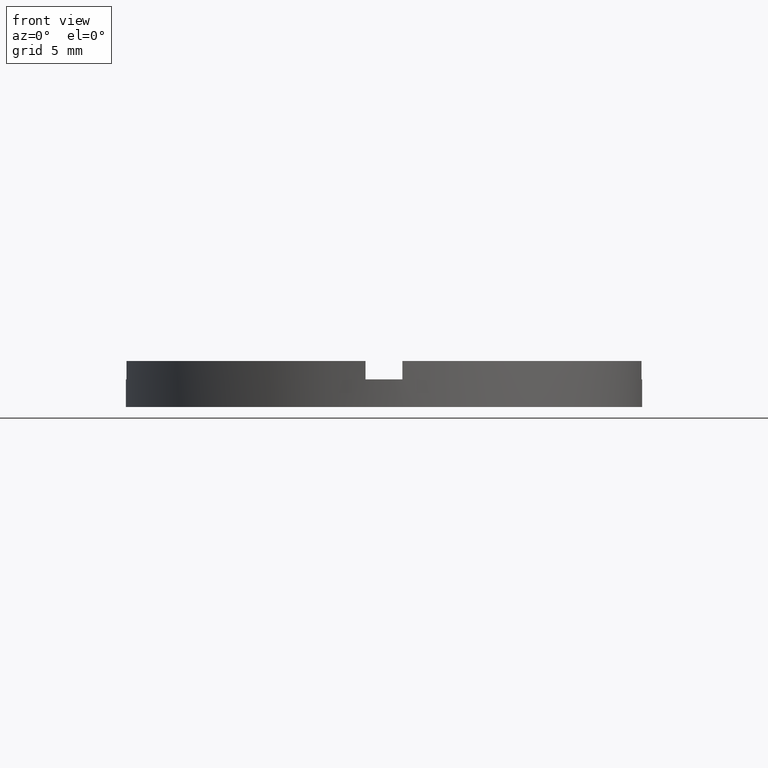
[diagram: clean part render]
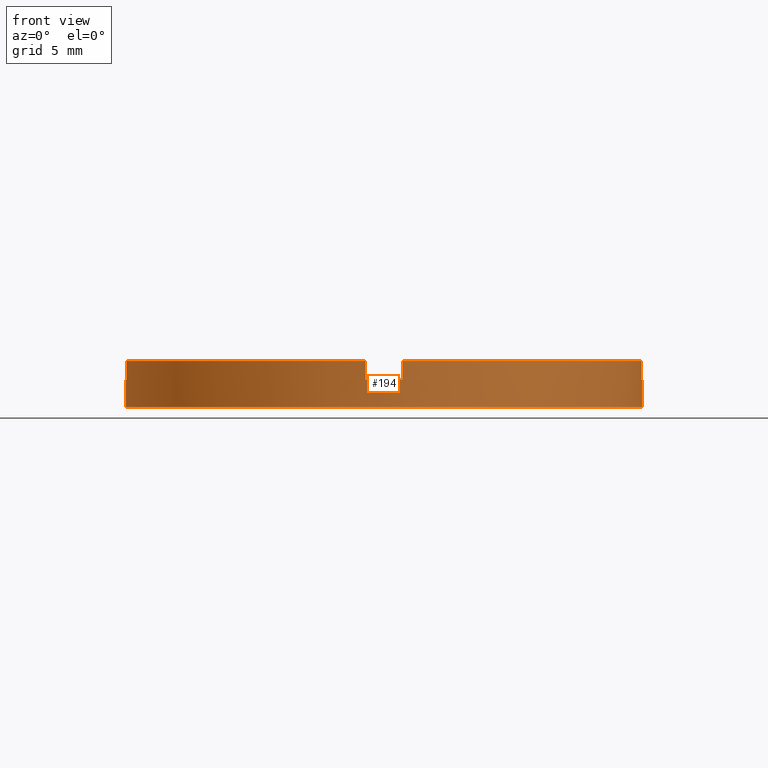
[diagram: same view with one face highlighted and labeled with its STEP entity id]
A machine part, front view. The second image highlights one B-rep face of the part: STEP entity #194.
In plain terms, the highlighted cylindrical surface (partial cylindrical patch) has radius 14 mm, axis along (-0, -0, -1).
Its self-contained STEP definition (entity closure, byte-faithful):
#10 = VECTOR ( 'NONE', #627, 1000.000000000000000 ) ;
#26 = DIRECTION ( 'NONE',  ( 1.000000000000000000, 0.000000000000000000, 0.000000000000000000 ) ) ;
#42 = CARTESIAN_POINT ( 'NONE',  ( 13.96424004376893002, -1.000000000000159650, 2.500000000000000000 ) ) ;
#49 = AXIS2_PLACEMENT_3D ( 'NONE', #422, #543, #646 ) ;
#52 = EDGE_CURVE ( 'NONE', #116, #447, #269, .T. ) ;
#67 = AXIS2_PLACEMENT_3D ( 'NONE', #117, #397, #184 ) ;
#72 = EDGE_CURVE ( 'NONE', #648, #231, #525, .T. ) ;
#73 = DIRECTION ( 'NONE',  ( 0.000000000000000000, 0.000000000000000000, 1.000000000000000000 ) ) ;
#87 = CARTESIAN_POINT ( 'NONE',  ( 0.9999999999998366862, -13.96424004376895311, 2.500000000000000000 ) ) ;
#91 = EDGE_CURVE ( 'NONE', #648, #448, #528, .T. ) ;
#102 = LINE ( 'NONE', #42, #585 ) ;
#111 = CIRCLE ( 'NONE', #206, 14.00000000000000000 ) ;
#115 = CIRCLE ( 'NONE', #327, 14.00000000000000000 ) ;
#116 = VERTEX_POINT ( 'NONE', #310 ) ;
#117 = CARTESIAN_POINT ( 'NONE',  ( 0.000000000000000000, 0.000000000000000000, 1.500000000000000000 ) ) ;
#126 = EDGE_CURVE ( 'NONE', #752, #413, #270, .T. ) ;
#131 = VERTEX_POINT ( 'NONE', #579 ) ;
#144 = ORIENTED_EDGE ( 'NONE', *, *, #52, .T. ) ;
#147 = ORIENTED_EDGE ( 'NONE', *, *, #697, .T. ) ;
#152 = VERTEX_POINT ( 'NONE', #739 ) ;
#155 = CARTESIAN_POINT ( 'NONE',  ( 0.000000000000000000, 0.000000000000000000, 0.000000000000000000 ) ) ;
#184 = DIRECTION ( 'NONE',  ( 1.000000000000000000, 0.000000000000000000, 0.000000000000000000 ) ) ;
#194 = ADVANCED_FACE ( 'NONE', ( #781 ), #241, .T. ) ;
#202 = ORIENTED_EDGE ( 'NONE', *, *, #247, .T. ) ;
#206 = AXIS2_PLACEMENT_3D ( 'NONE', #155, #73, #508 ) ;
#207 = ORIENTED_EDGE ( 'NONE', *, *, #91, .T. ) ;
#212 = DIRECTION ( 'NONE',  ( 0.000000000000000000, 0.000000000000000000, 1.000000000000000000 ) ) ;
#213 = ORIENTED_EDGE ( 'NONE', *, *, #339, .F. ) ;
#217 = CARTESIAN_POINT ( 'NONE',  ( -1.000000000000163203, -13.96424004376893002, 2.500000000000000000 ) ) ;
#219 = CARTESIAN_POINT ( 'NONE',  ( 0.9999999999998366862, -13.96424004376895311, 1.500000000000000000 ) ) ;
#231 = VERTEX_POINT ( 'NONE', #678 ) ;
#241 = CYLINDRICAL_SURFACE ( 'NONE', #536, 14.00000000000000000 ) ;
#247 = EDGE_CURVE ( 'NONE', #152, #231, #755, .T. ) ;
#269 = LINE ( 'NONE', #534, #518 ) ;
#270 = CIRCLE ( 'NONE', #49, 14.00000000000000000 ) ;
#280 = EDGE_CURVE ( 'NONE', #656, #723, #765, .T. ) ;
#283 = DIRECTION ( 'NONE',  ( -0.000000000000000000, -0.000000000000000000, -1.000000000000000000 ) ) ;
#285 = CARTESIAN_POINT ( 'NONE',  ( -13.96424004376894068, -1.000000000000022871, 2.500000000000000000 ) ) ;
#307 = DIRECTION ( 'NONE',  ( 0.000000000000000000, 0.000000000000000000, 1.000000000000000000 ) ) ;
#310 = CARTESIAN_POINT ( 'NONE',  ( -1.000000000000163203, -13.96424004376893002, 1.500000000000000000 ) ) ;
#327 = AXIS2_PLACEMENT_3D ( 'NONE', #753, #500, #26 ) ;
#337 = LINE ( 'NONE', #366, #351 ) ;
#339 = EDGE_CURVE ( 'NONE', #413, #131, #507, .T. ) ;
#351 = VECTOR ( 'NONE', #283, 1000.000000000000000 ) ;
#366 = CARTESIAN_POINT ( 'NONE',  ( 0.9999999999998366862, -13.96424004376895311, 2.500000000000000000 ) ) ;
#378 = DIRECTION ( 'NONE',  ( 0.000000000000000000, 0.000000000000000000, 1.000000000000000000 ) ) ;
#381 = DIRECTION ( 'NONE',  ( -0.000000000000000000, -0.000000000000000000, -1.000000000000000000 ) ) ;
#382 = EDGE_LOOP ( 'NONE', ( #213, #680, #719, #400, #394, #458, #144, #409, #202, #631, #207, #147 ) ) ;
#394 = ORIENTED_EDGE ( 'NONE', *, *, #659, .T. ) ;
#397 = DIRECTION ( 'NONE',  ( 0.000000000000000000, 0.000000000000000000, 1.000000000000000000 ) ) ;
#399 = DIRECTION ( 'NONE',  ( -0.000000000000000000, -0.000000000000000000, -1.000000000000000000 ) ) ;
#400 = ORIENTED_EDGE ( 'NONE', *, *, #280, .F. ) ;
#409 = ORIENTED_EDGE ( 'NONE', *, *, #529, .F. ) ;
#413 = VERTEX_POINT ( 'NONE', #577 ) ;
#422 = CARTESIAN_POINT ( 'NONE',  ( 0.000000000000000000, 0.000000000000000000, 1.500000000000000000 ) ) ;
#447 = VERTEX_POINT ( 'NONE', #217 ) ;
#448 = VERTEX_POINT ( 'NONE', #580 ) ;
#458 = ORIENTED_EDGE ( 'NONE', *, *, #479, .F. ) ;
#479 = EDGE_CURVE ( 'NONE', #116, #677, #623, .T. ) ;
#492 = CARTESIAN_POINT ( 'NONE',  ( 0.000000000000000000, 0.000000000000000000, 2.500000000000000000 ) ) ;
#495 = DIRECTION ( 'NONE',  ( -0.000000000000000000, 0.000000000000000000, 1.000000000000000000 ) ) ;
#498 = CARTESIAN_POINT ( 'NONE',  ( 0.000000000000000000, 0.000000000000000000, 2.500000000000000000 ) ) ;
#500 = DIRECTION ( 'NONE',  ( 0.000000000000000000, 0.000000000000000000, 1.000000000000000000 ) ) ;
#502 = CARTESIAN_POINT ( 'NONE',  ( 13.96424004376893002, -1.000000000000159650, 1.500000000000000000 ) ) ;
#507 = LINE ( 'NONE', #686, #775 ) ;
#508 = DIRECTION ( 'NONE',  ( 1.000000000000000000, 0.000000000000000000, 0.000000000000000000 ) ) ;
#518 = VECTOR ( 'NONE', #307, 1000.000000000000000 ) ;
#525 = CIRCLE ( 'NONE', #67, 14.00000000000000000 ) ;
#528 = LINE ( 'NONE', #574, #10 ) ;
#529 = EDGE_CURVE ( 'NONE', #152, #447, #115, .T. ) ;
#534 = CARTESIAN_POINT ( 'NONE',  ( -1.000000000000163203, -13.96424004376893002, 2.500000000000000000 ) ) ;
#536 = AXIS2_PLACEMENT_3D ( 'NONE', #498, #688, #761 ) ;
#543 = DIRECTION ( 'NONE',  ( 0.000000000000000000, 0.000000000000000000, 1.000000000000000000 ) ) ;
#546 = DIRECTION ( 'NONE',  ( 1.000000000000000000, 0.000000000000000000, 0.000000000000000000 ) ) ;
#574 = CARTESIAN_POINT ( 'NONE',  ( -14.00000000000000000, 0.000000000000000000, 2.500000000000000000 ) ) ;
#576 = AXIS2_PLACEMENT_3D ( 'NONE', #492, #212, #546 ) ;
#577 = CARTESIAN_POINT ( 'NONE',  ( 14.00000000000000000, 1.714505518806294638E-15, 1.500000000000000000 ) ) ;
#579 = CARTESIAN_POINT ( 'NONE',  ( 14.00000000000000000, 1.714505518806294638E-15, 0.000000000000000000 ) ) ;
#580 = CARTESIAN_POINT ( 'NONE',  ( -14.00000000000000000, 0.000000000000000000, 0.000000000000000000 ) ) ;
#585 = VECTOR ( 'NONE', #378, 1000.000000000000000 ) ;
#592 = DIRECTION ( 'NONE',  ( 1.000000000000000000, 0.000000000000000000, 0.000000000000000000 ) ) ;
#613 = CARTESIAN_POINT ( 'NONE',  ( 13.96424004376893002, -1.000000000000159650, 2.500000000000000000 ) ) ;
#623 = CIRCLE ( 'NONE', #701, 14.00000000000000000 ) ;
#627 = DIRECTION ( 'NONE',  ( -0.000000000000000000, -0.000000000000000000, -1.000000000000000000 ) ) ;
#631 = ORIENTED_EDGE ( 'NONE', *, *, #72, .F. ) ;
#636 = EDGE_CURVE ( 'NONE', #752, #723, #102, .T. ) ;
#646 = DIRECTION ( 'NONE',  ( 1.000000000000000000, 0.000000000000000000, 0.000000000000000000 ) ) ;
#648 = VERTEX_POINT ( 'NONE', #657 ) ;
#651 = CARTESIAN_POINT ( 'NONE',  ( 0.000000000000000000, 0.000000000000000000, 1.500000000000000000 ) ) ;
#656 = VERTEX_POINT ( 'NONE', #87 ) ;
#657 = CARTESIAN_POINT ( 'NONE',  ( -14.00000000000000000, 0.000000000000000000, 1.500000000000000000 ) ) ;
#659 = EDGE_CURVE ( 'NONE', #656, #677, #337, .T. ) ;
#677 = VERTEX_POINT ( 'NONE', #219 ) ;
#678 = CARTESIAN_POINT ( 'NONE',  ( -13.96424004376894068, -1.000000000000022871, 1.500000000000000000 ) ) ;
#680 = ORIENTED_EDGE ( 'NONE', *, *, #126, .F. ) ;
#686 = CARTESIAN_POINT ( 'NONE',  ( 14.00000000000000000, 1.714505518806294638E-15, 2.500000000000000000 ) ) ;
#688 = DIRECTION ( 'NONE',  ( -0.000000000000000000, -0.000000000000000000, -1.000000000000000000 ) ) ;
#697 = EDGE_CURVE ( 'NONE', #448, #131, #111, .T. ) ;
#701 = AXIS2_PLACEMENT_3D ( 'NONE', #651, #495, #592 ) ;
#719 = ORIENTED_EDGE ( 'NONE', *, *, #636, .T. ) ;
#723 = VERTEX_POINT ( 'NONE', #613 ) ;
#739 = CARTESIAN_POINT ( 'NONE',  ( -13.96424004376894068, -1.000000000000022871, 2.500000000000000000 ) ) ;
#752 = VERTEX_POINT ( 'NONE', #502 ) ;
#753 = CARTESIAN_POINT ( 'NONE',  ( 0.000000000000000000, 0.000000000000000000, 2.500000000000000000 ) ) ;
#755 = LINE ( 'NONE', #285, #763 ) ;
#761 = DIRECTION ( 'NONE',  ( -1.000000000000000000, 0.000000000000000000, 0.000000000000000000 ) ) ;
#763 = VECTOR ( 'NONE', #381, 1000.000000000000000 ) ;
#765 = CIRCLE ( 'NONE', #576, 14.00000000000000000 ) ;
#775 = VECTOR ( 'NONE', #399, 1000.000000000000000 ) ;
#781 = FACE_OUTER_BOUND ( 'NONE', #382, .T. ) ;